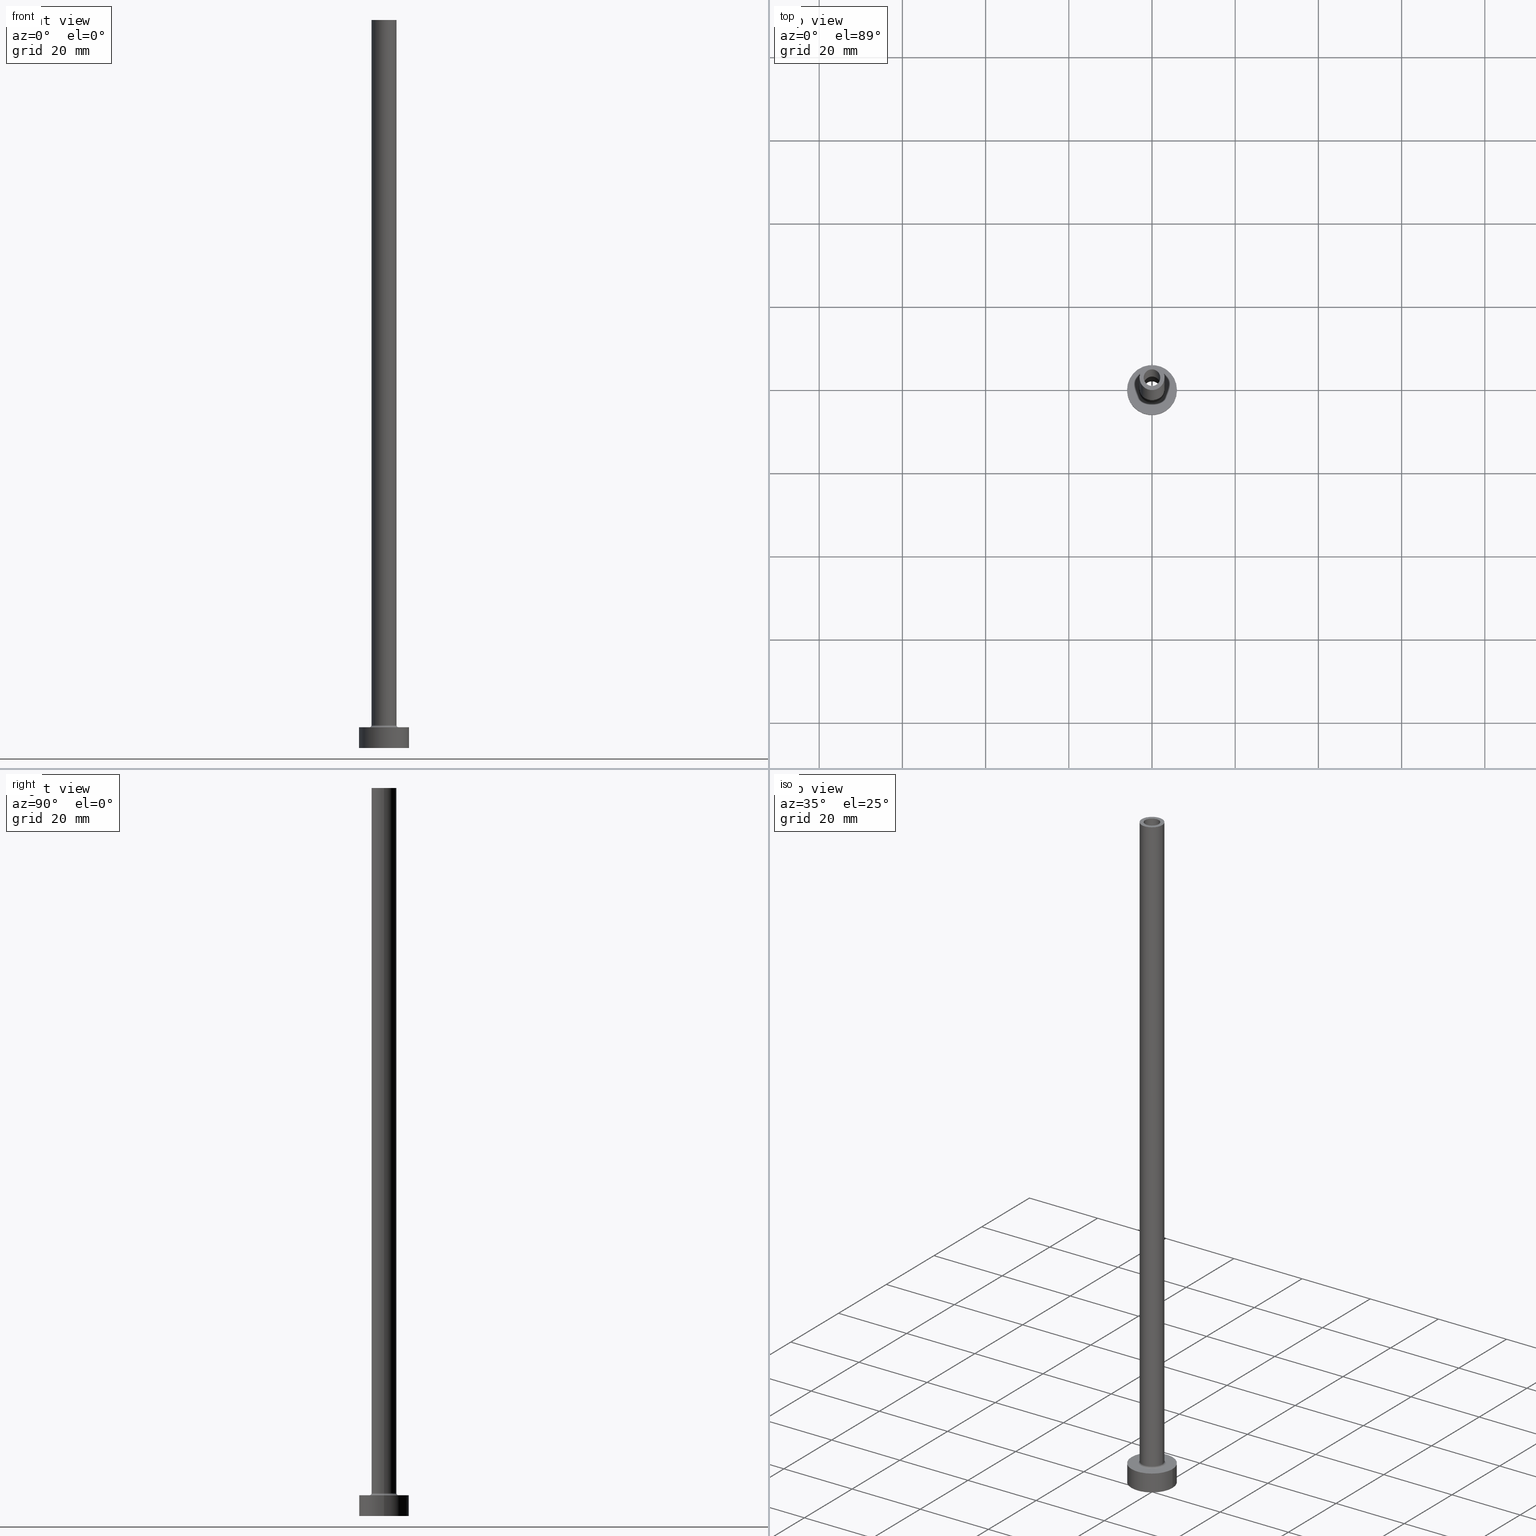
[diagram: canonical four-view strip — front | top / right | iso, engineering-drawing reading convention]
A machine part, canonical four-view strip (front | top / right | iso — engineering-drawing reading convention). The complete STEP part file that produces these views, byte-faithful:
ISO-10303-21;
HEADER;
FILE_DESCRIPTION (( 'STEP AP203' ),
    '1' );
FILE_NAME ('ddb3.STEP',
    '2023-02-13T17:45:48',
    ( '' ),
    ( '' ),
    'SwSTEP 2.0',
    'SolidWorks 2019',
    '' );
FILE_SCHEMA (( 'CONFIG_CONTROL_DESIGN' ));
ENDSEC;

DATA;
#1 = CARTESIAN_POINT ( 'NONE',  ( 6.000000000000000888, 7.347880794884120722E-16, 5.000000000000000000 ) ) ;
#2 = CARTESIAN_POINT ( 'NONE',  ( 0.000000000000000000, 0.000000000000000000, 0.000000000000000000 ) ) ;
#3 = PERSON_AND_ORGANIZATION_ROLE ( 'design_supplier' ) ;
#4 = ADVANCED_FACE ( 'NONE', ( #415 ), #43, .T. ) ;
#5 = PERSON_AND_ORGANIZATION ( #138, #287 ) ;
#6 = DIRECTION ( 'NONE',  ( 1.000000000000000000, 0.000000000000000000, 0.000000000000000000 ) ) ;
#7 = AXIS2_PLACEMENT_3D ( 'NONE', #293, #117, #431 ) ;
#8 = CIRCLE ( 'NONE', #316, 2.000000000000000000 ) ;
#9 = FACE_BOUND ( 'NONE', #270, .T. ) ;
#10 = FACE_OUTER_BOUND ( 'NONE', #244, .T. ) ;
#11 = ADVANCED_BREP_SHAPE_REPRESENTATION ( 'ddb3', ( #381, #333 ), #356 ) ;
#12 = ORIENTED_EDGE ( 'NONE', *, *, #237, .T. ) ;
#13 = AXIS2_PLACEMENT_3D ( 'NONE', #2, #75, #429 ) ;
#14 = EDGE_CURVE ( 'NONE', #413, #174, #24, .T. ) ;
#15 = FACE_OUTER_BOUND ( 'NONE', #280, .T. ) ;
#16 = CYLINDRICAL_SURFACE ( 'NONE', #257, 2.000000000000000000 ) ;
#17 = AXIS2_PLACEMENT_3D ( 'NONE', #446, #378, #372 ) ;
#18 = CIRCLE ( 'NONE', #192, 6.000000000000000888 ) ;
#19 = ORIENTED_EDGE ( 'NONE', *, *, #237, .F. ) ;
#20 = CARTESIAN_POINT ( 'NONE',  ( 0.000000000000000000, 0.000000000000000000, 5.000000000000000000 ) ) ;
#21 = CC_DESIGN_DATE_AND_TIME_ASSIGNMENT ( #250, #83, ( #76 ) ) ;
#22 = ORIENTED_EDGE ( 'NONE', *, *, #289, .T. ) ;
#23 = DIRECTION ( 'NONE',  ( -0.000000000000000000, -0.000000000000000000, -1.000000000000000000 ) ) ;
#24 = CIRCLE ( 'NONE', #13, 2.149999999999999911 ) ;
#25 = ORIENTED_EDGE ( 'NONE', *, *, #433, .F. ) ;
#26 = CARTESIAN_POINT ( 'NONE',  ( 0.000000000000000000, 0.000000000000000000, 175.0000000000000284 ) ) ;
#27 = CIRCLE ( 'NONE', #425, 3.000000000000000444 ) ;
#28 = LOCAL_TIME ( 18, 45, 48.00000000000000000, #318 ) ;
#29 = ORIENTED_EDGE ( 'NONE', *, *, #131, .T. ) ;
#30 = CYLINDRICAL_SURFACE ( 'NONE', #158, 6.000000000000000888 ) ;
#31 = EDGE_CURVE ( 'NONE', #397, #413, #102, .T. ) ;
#32 = DIRECTION ( 'NONE',  ( 1.000000000000000000, 0.000000000000000000, 0.000000000000000000 ) ) ;
#33 = CYLINDRICAL_SURFACE ( 'NONE', #453, 2.149999999999999911 ) ;
#34 = AXIS2_PLACEMENT_3D ( 'NONE', #444, #125, #271 ) ;
#35 = CARTESIAN_POINT ( 'NONE',  ( 2.000000000000000000, 2.449293598294706414E-16, 130.0000000000000000 ) ) ;
#36 = EDGE_CURVE ( 'NONE', #231, #403, #382, .T. ) ;
#37 = CARTESIAN_POINT ( 'NONE',  ( -3.500000000000000444, 4.286263797015737088E-16, 5.000000000000002665 ) ) ;
#38 = DIRECTION ( 'NONE',  ( 1.000000000000000000, 0.000000000000000000, 0.000000000000000000 ) ) ;
#39 = AXIS2_PLACEMENT_3D ( 'NONE', #253, #114, #6 ) ;
#40 = DIRECTION ( 'NONE',  ( 0.000000000000000000, 0.000000000000000000, 1.000000000000000000 ) ) ;
#41 = ORIENTED_EDGE ( 'NONE', *, *, #388, .F. ) ;
#42 = EDGE_CURVE ( 'NONE', #282, #357, #45, .T. ) ;
#43 = CYLINDRICAL_SURFACE ( 'NONE', #216, 3.000000000000000444 ) ;
#44 = DIRECTION ( 'NONE',  ( -0.000000000000000000, -0.000000000000000000, -1.000000000000000000 ) ) ;
#45 = CIRCLE ( 'NONE', #82, 3.000000000000000444 ) ;
#46 = PERSON_AND_ORGANIZATION ( #138, #287 ) ;
#47 = CARTESIAN_POINT ( 'NONE',  ( 0.000000000000000000, 0.000000000000000000, 175.0000000000000284 ) ) ;
#48 = PLANE ( 'NONE',  #7 ) ;
#49 = ORIENTED_EDGE ( 'NONE', *, *, #432, .T. ) ;
#50 = CC_DESIGN_PERSON_AND_ORGANIZATION_ASSIGNMENT ( #86, #149, ( #58 ) ) ;
#51 = APPROVAL_STATUS ( 'not_yet_approved' ) ;
#52 = DIRECTION ( 'NONE',  ( 1.000000000000000000, 0.000000000000000000, 0.000000000000000000 ) ) ;
#53 = AXIS2_PLACEMENT_3D ( 'NONE', #190, #439, #436 ) ;
#54 = CARTESIAN_POINT ( 'NONE',  ( 0.000000000000000000, 0.000000000000000000, 130.0000000000000000 ) ) ;
#55 = EDGE_CURVE ( 'NONE', #260, #389, #337, .T. ) ;
#56 = DIRECTION ( 'NONE',  ( 1.000000000000000000, 0.000000000000000000, 0.000000000000000000 ) ) ;
#57 = EDGE_CURVE ( 'NONE', #224, #389, #313, .T. ) ;
#58 = SECURITY_CLASSIFICATION ( '', '', #321 ) ;
#59 = LINE ( 'NONE', #194, #461 ) ;
#60 = ORIENTED_EDGE ( 'NONE', *, *, #324, .F. ) ;
#61 = DIRECTION ( 'NONE',  ( 0.000000000000000000, 0.000000000000000000, -1.000000000000000000 ) ) ;
#62 = VECTOR ( 'NONE', #396, 1000.000000000000000 ) ;
#63 = EDGE_LOOP ( 'NONE', ( #210, #451 ) ) ;
#64 = FACE_OUTER_BOUND ( 'NONE', #134, .T. ) ;
#65 = LOCAL_TIME ( 18, 45, 48.00000000000000000, #113 ) ;
#66 = EDGE_LOOP ( 'NONE', ( #300, #12, #291, #168 ) ) ;
#67 = LINE ( 'NONE', #232, #78 ) ;
#68 = DIRECTION ( 'NONE',  ( 1.000000000000000000, 0.000000000000000000, 0.000000000000000000 ) ) ;
#69 = CARTESIAN_POINT ( 'NONE',  ( 0.000000000000000000, 0.000000000000000000, 0.000000000000000000 ) ) ;
#70 = EDGE_CURVE ( 'NONE', #403, #231, #234, .T. ) ;
#71 = CIRCLE ( 'NONE', #323, 2.000000000000000000 ) ;
#72 = CC_DESIGN_APPROVAL ( #123, ( #58 ) ) ;
#73 = CARTESIAN_POINT ( 'NONE',  ( 6.000000000000000888, 7.347880794884120722E-16, 5.000000000000000000 ) ) ;
#74 = EDGE_LOOP ( 'NONE', ( #124, #298 ) ) ;
#75 = DIRECTION ( 'NONE',  ( -0.000000000000000000, -0.000000000000000000, -1.000000000000000000 ) ) ;
#76 = PRODUCT_DEFINITION ( 'NEZN�M�', '', #350, #455 ) ;
#77 = ORIENTED_EDGE ( 'NONE', *, *, #31, .T. ) ;
#78 = VECTOR ( 'NONE', #193, 1000.000000000000000 ) ;
#79 = PERSON_AND_ORGANIZATION_ROLE ( 'creator' ) ;
#80 = DATE_AND_TIME ( #184, #135 ) ;
#81 = CARTESIAN_POINT ( 'NONE',  ( 0.000000000000000000, 0.000000000000000000, 5.500000000000005329 ) ) ;
#82 = AXIS2_PLACEMENT_3D ( 'NONE', #274, #423, #107 ) ;
#83 = DATE_TIME_ROLE ( 'creation_date' ) ;
#84 = DIRECTION ( 'NONE',  ( 0.000000000000000000, 0.000000000000000000, 1.000000000000000000 ) ) ;
#85 = VERTEX_POINT ( 'NONE', #218 ) ;
#86 = PERSON_AND_ORGANIZATION ( #138, #287 ) ;
#87 = AXIS2_PLACEMENT_3D ( 'NONE', #296, #226, #200 ) ;
#88 = CARTESIAN_POINT ( 'NONE',  ( -6.000000000000000888, 0.000000000000000000, 5.000000000000000000 ) ) ;
#89 = ORIENTED_EDGE ( 'NONE', *, *, #402, .T. ) ;
#90 = CARTESIAN_POINT ( 'NONE',  ( -3.500000000000000444, 4.286263797015737088E-16, 5.500000000000005329 ) ) ;
#91 = PRODUCT_DEFINITION_SHAPE ( 'NONE', 'NONE',  #76 ) ;
#92 = EDGE_LOOP ( 'NONE', ( #447, #246, #369, #22 ) ) ;
#93 = FACE_BOUND ( 'NONE', #440, .T. ) ;
#94 = ORIENTED_EDGE ( 'NONE', *, *, #412, .F. ) ;
#95 = DIRECTION ( 'NONE',  ( -1.000000000000000000, 0.000000000000000000, 0.000000000000000000 ) ) ;
#96 = AXIS2_PLACEMENT_3D ( 'NONE', #329, #414, #261 ) ;
#97 = ORIENTED_EDGE ( 'NONE', *, *, #348, .T. ) ;
#98 = CARTESIAN_POINT ( 'NONE',  ( 3.500000000000000444, 0.000000000000000000, 5.000000000000002665 ) ) ;
#99 = EDGE_LOOP ( 'NONE', ( #335, #302 ) ) ;
#100 = CARTESIAN_POINT ( 'NONE',  ( 0.000000000000000000, 0.000000000000000000, 0.000000000000000000 ) ) ;
#101 = EDGE_CURVE ( 'NONE', #199, #282, #144, .T. ) ;
#102 = LINE ( 'NONE', #178, #352 ) ;
#103 = CYLINDRICAL_SURFACE ( 'NONE', #303, 3.000000000000000444 ) ;
#104 = AXIS2_PLACEMENT_3D ( 'NONE', #308, #353, #202 ) ;
#105 = DATE_AND_TIME ( #422, #370 ) ;
#106 = ADVANCED_FACE ( 'NONE', ( #179 ), #285, .T. ) ;
#107 = DIRECTION ( 'NONE',  ( 1.000000000000000000, 0.000000000000000000, 0.000000000000000000 ) ) ;
#108 =( NAMED_UNIT ( * ) PLANE_ANGLE_UNIT ( ) SI_UNIT ( $, .RADIAN. ) );
#109 = CARTESIAN_POINT ( 'NONE',  ( 0.000000000000000000, 0.000000000000000000, 175.0000000000000284 ) ) ;
#110 = EDGE_CURVE ( 'NONE', #272, #442, #189, .T. ) ;
#111 = DIRECTION ( 'NONE',  ( -0.000000000000000000, -0.000000000000000000, -1.000000000000000000 ) ) ;
#112 = ORIENTED_EDGE ( 'NONE', *, *, #42, .F. ) ;
#113 = COORDINATED_UNIVERSAL_TIME_OFFSET ( 1, 0, .AHEAD. ) ;
#114 = DIRECTION ( 'NONE',  ( 0.000000000000000000, 0.000000000000000000, 1.000000000000000000 ) ) ;
#115 = CIRCLE ( 'NONE', #34, 3.000000000000000444 ) ;
#116 = APPROVAL_ROLE ( '' ) ;
#117 = DIRECTION ( 'NONE',  ( 0.000000000000000000, 0.000000000000000000, 1.000000000000000000 ) ) ;
#118 = ADVANCED_FACE ( 'NONE', ( #15 ), #119, .F. ) ;
#119 = CYLINDRICAL_SURFACE ( 'NONE', #314, 2.000000000000000000 ) ;
#120 = CARTESIAN_POINT ( 'NONE',  ( 3.000000000000000444, 3.673940397442060361E-16, 175.0000000000000284 ) ) ;
#121 = EDGE_LOOP ( 'NONE', ( #367, #405 ) ) ;
#122 = CIRCLE ( 'NONE', #286, 0.4999999999999995559 ) ;
#123 = APPROVAL ( #51, 'NEUR�EN�' ) ;
#124 = ORIENTED_EDGE ( 'NONE', *, *, #432, .F. ) ;
#125 = DIRECTION ( 'NONE',  ( 0.000000000000000000, 0.000000000000000000, 1.000000000000000000 ) ) ;
#126 = ORIENTED_EDGE ( 'NONE', *, *, #330, .F. ) ;
#127 = DIRECTION ( 'NONE',  ( 0.000000000000000000, 0.000000000000000000, -1.000000000000000000 ) ) ;
#128 = PLANE ( 'NONE',  #87 ) ;
#129 = ORIENTED_EDGE ( 'NONE', *, *, #70, .F. ) ;
#130 = CARTESIAN_POINT ( 'NONE',  ( -3.000000000000000444, 0.000000000000000000, 5.500000000000005329 ) ) ;
#131 = EDGE_CURVE ( 'NONE', #357, #442, #122, .T. ) ;
#132 = ORIENTED_EDGE ( 'NONE', *, *, #348, .F. ) ;
#133 = LINE ( 'NONE', #448, #355 ) ;
#134 = EDGE_LOOP ( 'NONE', ( #160, #376 ) ) ;
#135 = LOCAL_TIME ( 18, 45, 48.00000000000000000, #252 ) ;
#136 = DIRECTION ( 'NONE',  ( 0.000000000000000000, -1.000000000000000000, 0.000000000000000000 ) ) ;
#137 = CARTESIAN_POINT ( 'NONE',  ( -2.149999999999999911, 0.000000000000000000, 130.0000000000000000 ) ) ;
#138 = PERSON ( 'NEUR�EN�', 'NEUR�EN�', 'NEUR�EN�', ('NEUR�EN�'), ('NEUR�EN�'), ('NEUR�EN�') ) ;
#139 = PERSON_AND_ORGANIZATION_ROLE ( 'design_owner' ) ;
#140 = EDGE_LOOP ( 'NONE', ( #438, #332, #142, #126 ) ) ;
#141 = CC_DESIGN_APPROVAL ( #169, ( #76 ) ) ;
#142 = ORIENTED_EDGE ( 'NONE', *, *, #42, .T. ) ;
#143 = COORDINATED_UNIVERSAL_TIME_OFFSET ( 1, 0, .AHEAD. ) ;
#144 = LINE ( 'NONE', #214, #153 ) ;
#145 = FACE_BOUND ( 'NONE', #63, .T. ) ;
#146 = AXIS2_PLACEMENT_3D ( 'NONE', #81, #84, #251 ) ;
#147 = ADVANCED_FACE ( 'NONE', ( #145, #437 ), #183, .F. ) ;
#148 = CC_DESIGN_APPROVAL ( #449, ( #350 ) ) ;
#149 = PERSON_AND_ORGANIZATION_ROLE ( 'classification_officer' ) ;
#150 = DIRECTION ( 'NONE',  ( 0.000000000000000000, 0.000000000000000000, 1.000000000000000000 ) ) ;
#151 = DIRECTION ( 'NONE',  ( 0.000000000000000000, 0.000000000000000000, 1.000000000000000000 ) ) ;
#152 = ORIENTED_EDGE ( 'NONE', *, *, #315, .T. ) ;
#153 = VECTOR ( 'NONE', #44, 1000.000000000000000 ) ;
#154 = CARTESIAN_POINT ( 'NONE',  ( 2.149999999999999911, 2.632990618166809235E-16, 0.000000000000000000 ) ) ;
#155 = ADVANCED_FACE ( 'NONE', ( #10 ), #400, .F. ) ;
#156 = ORIENTED_EDGE ( 'NONE', *, *, #31, .F. ) ;
#157 = VECTOR ( 'NONE', #23, 1000.000000000000000 ) ;
#158 = AXIS2_PLACEMENT_3D ( 'NONE', #20, #299, #95 ) ;
#159 = DIRECTION ( 'NONE',  ( 0.000000000000000000, 0.000000000000000000, 1.000000000000000000 ) ) ;
#160 = ORIENTED_EDGE ( 'NONE', *, *, #186, .T. ) ;
#161 = DIRECTION ( 'NONE',  ( 0.000000000000000000, 0.000000000000000000, -1.000000000000000000 ) ) ;
#162 = ORIENTED_EDGE ( 'NONE', *, *, #264, .T. ) ;
#163 = PRODUCT_RELATED_PRODUCT_CATEGORY ( 'detail', '', ( #195 ) ) ;
#164 = DIRECTION ( 'NONE',  ( -1.000000000000000000, 0.000000000000000000, 0.000000000000000000 ) ) ;
#165 = CIRCLE ( 'NONE', #424, 3.000000000000000444 ) ;
#166 = EDGE_LOOP ( 'NONE', ( #94, #220, #227, #258 ) ) ;
#167 = DIRECTION ( 'NONE',  ( 1.000000000000000000, 0.000000000000000000, 0.000000000000000000 ) ) ;
#168 = ORIENTED_EDGE ( 'NONE', *, *, #315, .F. ) ;
#169 = APPROVAL ( #277, 'NEUR�EN�' ) ;
#170 = CARTESIAN_POINT ( 'NONE',  ( 0.000000000000000000, 0.000000000000000000, 0.000000000000000000 ) ) ;
#171 = DIRECTION ( 'NONE',  ( 0.000000000000000000, 0.000000000000000000, -1.000000000000000000 ) ) ;
#172 = PERSON_AND_ORGANIZATION ( #138, #287 ) ;
#173 = UNCERTAINTY_MEASURE_WITH_UNIT (LENGTH_MEASURE( 1.000000000000000082E-05 ), #175, 'distance_accuracy_value', 'NONE');
#174 = VERTEX_POINT ( 'NONE', #154 ) ;
#175 =( LENGTH_UNIT ( ) NAMED_UNIT ( * ) SI_UNIT ( .MILLI., .METRE. ) );
#176 = ADVANCED_FACE ( 'NONE', ( #404, #361 ), #48, .T. ) ;
#177 = ORIENTED_EDGE ( 'NONE', *, *, #388, .T. ) ;
#178 = CARTESIAN_POINT ( 'NONE',  ( -2.149999999999999911, 0.000000000000000000, 136.0811183182042896 ) ) ;
#179 = FACE_OUTER_BOUND ( 'NONE', #166, .T. ) ;
#180 = AXIS2_PLACEMENT_3D ( 'NONE', #236, #201, #32 ) ;
#181 = EDGE_CURVE ( 'NONE', #254, #397, #267, .T. ) ;
#182 = PERSON_AND_ORGANIZATION_ROLE ( 'creator' ) ;
#183 = PLANE ( 'NONE',  #240 ) ;
#184 = CALENDAR_DATE ( 2023, 13, 2 ) ;
#185 = DIRECTION ( 'NONE',  ( 1.000000000000000000, 0.000000000000000000, 0.000000000000000000 ) ) ;
#186 = EDGE_CURVE ( 'NONE', #188, #199, #165, .T. ) ;
#187 = CARTESIAN_POINT ( 'NONE',  ( 0.000000000000000000, 0.000000000000000000, 175.0000000000000284 ) ) ;
#188 = VERTEX_POINT ( 'NONE', #322 ) ;
#189 = CIRCLE ( 'NONE', #53, 3.500000000000000444 ) ;
#190 = CARTESIAN_POINT ( 'NONE',  ( 0.000000000000000000, 0.000000000000000000, 5.000000000000000000 ) ) ;
#191 = ORIENTED_EDGE ( 'NONE', *, *, #433, .T. ) ;
#192 = AXIS2_PLACEMENT_3D ( 'NONE', #386, #40, #312 ) ;
#193 = DIRECTION ( 'NONE',  ( -0.000000000000000000, -0.000000000000000000, -1.000000000000000000 ) ) ;
#194 = CARTESIAN_POINT ( 'NONE',  ( 2.149999999999999911, 2.632990618166809235E-16, 136.0811183182042896 ) ) ;
#195 = PRODUCT ( 'ddb3', 'ddb3', '', ( #458 ) ) ;
#196 = ADVANCED_FACE ( 'NONE', ( #9, #399 ), #366, .F. ) ;
#197 = EDGE_LOOP ( 'NONE', ( #129, #262, #89, #233 ) ) ;
#198 = FACE_OUTER_BOUND ( 'NONE', #328, .T. ) ;
#199 = VERTEX_POINT ( 'NONE', #120 ) ;
#200 = DIRECTION ( 'NONE',  ( 1.000000000000000000, 0.000000000000000000, -0.000000000000000000 ) ) ;
#201 = DIRECTION ( 'NONE',  ( 0.000000000000000000, 0.000000000000000000, 1.000000000000000000 ) ) ;
#202 = DIRECTION ( 'NONE',  ( 1.000000000000000000, 0.000000000000000000, 0.000000000000000000 ) ) ;
#203 = CC_DESIGN_PERSON_AND_ORGANIZATION_ASSIGNMENT ( #398, #3, ( #350 ) ) ;
#204 = CIRCLE ( 'NONE', #341, 0.5000000000000004441 ) ;
#205 = CARTESIAN_POINT ( 'NONE',  ( 6.000000000000000888, 7.347880794884120722E-16, 0.000000000000000000 ) ) ;
#206 = DIRECTION ( 'NONE',  ( 0.000000000000000000, 0.000000000000000000, 1.000000000000000000 ) ) ;
#207 = CC_DESIGN_PERSON_AND_ORGANIZATION_ASSIGNMENT ( #172, #139, ( #195 ) ) ;
#208 = ORIENTED_EDGE ( 'NONE', *, *, #110, .F. ) ;
#209 = APPROVAL_STATUS ( 'not_yet_approved' ) ;
#210 = ORIENTED_EDGE ( 'NONE', *, *, #14, .F. ) ;
#211 = TOROIDAL_SURFACE ( 'NONE', #17, 3.500000000000000444, 0.5000000000000000000 ) ;
#212 = APPLICATION_CONTEXT ( 'configuration controlled 3d designs of mechanical parts and assemblies' ) ;
#213 = SHAPE_DEFINITION_REPRESENTATION ( #91, #11 ) ;
#214 = CARTESIAN_POINT ( 'NONE',  ( 3.000000000000000444, 3.673940397442060361E-16, 175.0000000000000284 ) ) ;
#215 = DIRECTION ( 'NONE',  ( 1.000000000000000000, 0.000000000000000000, -0.000000000000000000 ) ) ;
#216 = AXIS2_PLACEMENT_3D ( 'NONE', #109, #344, #387 ) ;
#217 = CALENDAR_DATE ( 2023, 13, 2 ) ;
#218 = CARTESIAN_POINT ( 'NONE',  ( -6.000000000000000888, 0.000000000000000000, 0.000000000000000000 ) ) ;
#219 = AXIS2_PLACEMENT_3D ( 'NONE', #229, #161, #443 ) ;
#220 = ORIENTED_EDGE ( 'NONE', *, *, #36, .F. ) ;
#221 = CIRCLE ( 'NONE', #295, 2.149999999999999911 ) ;
#222 = APPROVAL_DATE_TIME ( #80, #449 ) ;
#223 = CARTESIAN_POINT ( 'NONE',  ( 0.000000000000000000, 0.000000000000000000, 175.0000000000000284 ) ) ;
#224 = VERTEX_POINT ( 'NONE', #255 ) ;
#225 = DIRECTION ( 'NONE',  ( 1.000000000000000000, 0.000000000000000000, 0.000000000000000000 ) ) ;
#226 = DIRECTION ( 'NONE',  ( 0.000000000000000000, 0.000000000000000000, 1.000000000000000000 ) ) ;
#227 = ORIENTED_EDGE ( 'NONE', *, *, #347, .T. ) ;
#228 = LOCAL_TIME ( 18, 45, 48.00000000000000000, #143 ) ;
#229 = CARTESIAN_POINT ( 'NONE',  ( 0.000000000000000000, 0.000000000000000000, 136.0811183182042896 ) ) ;
#230 = CC_DESIGN_DATE_AND_TIME_ASSIGNMENT ( #393, #327, ( #58 ) ) ;
#231 = VERTEX_POINT ( 'NONE', #88 ) ;
#232 = CARTESIAN_POINT ( 'NONE',  ( -6.000000000000000888, 0.000000000000000000, 5.000000000000000000 ) ) ;
#233 = ORIENTED_EDGE ( 'NONE', *, *, #347, .F. ) ;
#234 = CIRCLE ( 'NONE', #39, 6.000000000000000888 ) ;
#235 = CARTESIAN_POINT ( 'NONE',  ( -3.000000000000000444, 0.000000000000000000, 175.0000000000000284 ) ) ;
#236 = CARTESIAN_POINT ( 'NONE',  ( 0.000000000000000000, 0.000000000000000000, 5.000000000000000000 ) ) ;
#237 = EDGE_CURVE ( 'NONE', #224, #266, #71, .T. ) ;
#238 = DIRECTION ( 'NONE',  ( -1.000000000000000000, 0.000000000000000000, 0.000000000000000000 ) ) ;
#239 = LINE ( 'NONE', #1, #276 ) ;
#240 = AXIS2_PLACEMENT_3D ( 'NONE', #435, #284, #215 ) ;
#241 = CARTESIAN_POINT ( 'NONE',  ( 0.000000000000000000, 0.000000000000000000, 130.0000000000000000 ) ) ;
#242 = ADVANCED_FACE ( 'NONE', ( #441 ), #16, .F. ) ;
#243 = COORDINATED_UNIVERSAL_TIME_OFFSET ( 1, 0, .AHEAD. ) ;
#244 = EDGE_LOOP ( 'NONE', ( #427, #29, #208, #41 ) ) ;
#245 = CARTESIAN_POINT ( 'NONE',  ( -2.149999999999999911, 0.000000000000000000, 0.000000000000000000 ) ) ;
#246 = ORIENTED_EDGE ( 'NONE', *, *, #186, .F. ) ;
#247 = ADVANCED_FACE ( 'NONE', ( #198 ), #406, .F. ) ;
#248 = CALENDAR_DATE ( 2023, 13, 2 ) ;
#249 = DIRECTION ( 'NONE',  ( -1.000000000000000000, 0.000000000000000000, 0.000000000000000000 ) ) ;
#250 = DATE_AND_TIME ( #395, #28 ) ;
#251 = DIRECTION ( 'NONE',  ( 1.000000000000000000, 0.000000000000000000, 0.000000000000000000 ) ) ;
#252 = COORDINATED_UNIVERSAL_TIME_OFFSET ( 1, 0, .AHEAD. ) ;
#253 = CARTESIAN_POINT ( 'NONE',  ( 0.000000000000000000, 0.000000000000000000, 5.000000000000000000 ) ) ;
#254 = VERTEX_POINT ( 'NONE', #409 ) ;
#255 = CARTESIAN_POINT ( 'NONE',  ( 2.000000000000000000, 2.449293598294706414E-16, 175.0000000000000284 ) ) ;
#256 = EDGE_CURVE ( 'NONE', #85, #408, #384, .T. ) ;
#257 = AXIS2_PLACEMENT_3D ( 'NONE', #371, #61, #238 ) ;
#258 = ORIENTED_EDGE ( 'NONE', *, *, #256, .T. ) ;
#259 = DIRECTION ( 'NONE',  ( 0.000000000000000000, 0.000000000000000000, -1.000000000000000000 ) ) ;
#260 = VERTEX_POINT ( 'NONE', #339 ) ;
#261 = DIRECTION ( 'NONE',  ( 1.000000000000000000, 0.000000000000000000, 0.000000000000000000 ) ) ;
#262 = ORIENTED_EDGE ( 'NONE', *, *, #412, .T. ) ;
#263 = ADVANCED_FACE ( 'NONE', ( #411 ), #103, .T. ) ;
#264 = EDGE_CURVE ( 'NONE', #254, #174, #59, .T. ) ;
#265 = CARTESIAN_POINT ( 'NONE',  ( 0.000000000000000000, 0.000000000000000000, 130.0000000000000000 ) ) ;
#266 = VERTEX_POINT ( 'NONE', #375 ) ;
#267 = CIRCLE ( 'NONE', #418, 2.149999999999999911 ) ;
#268 = APPROVAL_PERSON_ORGANIZATION ( #430, #449, #116 ) ;
#269 = DIRECTION ( 'NONE',  ( 1.000000000000000000, 0.000000000000000000, 0.000000000000000000 ) ) ;
#270 = EDGE_LOOP ( 'NONE', ( #354, #152 ) ) ;
#271 = DIRECTION ( 'NONE',  ( 1.000000000000000000, 0.000000000000000000, 0.000000000000000000 ) ) ;
#272 = VERTEX_POINT ( 'NONE', #98 ) ;
#273 = DIRECTION ( 'NONE',  ( 0.000000000000000000, 0.000000000000000000, 1.000000000000000000 ) ) ;
#274 = CARTESIAN_POINT ( 'NONE',  ( 0.000000000000000000, 0.000000000000000000, 5.500000000000005329 ) ) ;
#275 = DIRECTION ( 'NONE',  ( -0.000000000000000000, -0.000000000000000000, -1.000000000000000000 ) ) ;
#276 = VECTOR ( 'NONE', #111, 1000.000000000000000 ) ;
#277 = APPROVAL_STATUS ( 'not_yet_approved' ) ;
#278 = CARTESIAN_POINT ( 'NONE',  ( 0.000000000000000000, 0.000000000000000000, 175.0000000000000284 ) ) ;
#279 = PERSON_AND_ORGANIZATION ( #138, #287 ) ;
#280 = EDGE_LOOP ( 'NONE', ( #191, #385, #351, #60 ) ) ;
#281 = FACE_OUTER_BOUND ( 'NONE', #307, .T. ) ;
#282 = VERTEX_POINT ( 'NONE', #306 ) ;
#283 = CC_DESIGN_PERSON_AND_ORGANIZATION_ASSIGNMENT ( #5, #182, ( #350 ) ) ;
#284 = DIRECTION ( 'NONE',  ( 0.000000000000000000, 0.000000000000000000, 1.000000000000000000 ) ) ;
#285 = CYLINDRICAL_SURFACE ( 'NONE', #450, 6.000000000000000888 ) ;
#286 = AXIS2_PLACEMENT_3D ( 'NONE', #90, #392, #358 ) ;
#287 = ORGANIZATION ( 'NEUR�EN�', 'NEUR�EN�', '' ) ;
#288 = DIRECTION ( 'NONE',  ( -0.000000000000000000, -0.000000000000000000, -1.000000000000000000 ) ) ;
#289 = EDGE_CURVE ( 'NONE', #357, #282, #27, .T. ) ;
#290 = DIRECTION ( 'NONE',  ( 1.000000000000000000, 0.000000000000000000, -0.000000000000000000 ) ) ;
#291 = ORIENTED_EDGE ( 'NONE', *, *, #324, .T. ) ;
#292 = APPROVAL_ROLE ( '' ) ;
#293 = CARTESIAN_POINT ( 'NONE',  ( 0.000000000000000000, 0.000000000000000000, 5.000000000000000000 ) ) ;
#294 = CIRCLE ( 'NONE', #362, 2.000000000000000000 ) ;
#295 = AXIS2_PLACEMENT_3D ( 'NONE', #69, #275, #456 ) ;
#296 = CARTESIAN_POINT ( 'NONE',  ( 0.000000000000000000, 0.000000000000000000, 175.0000000000000284 ) ) ;
#297 = CC_DESIGN_PERSON_AND_ORGANIZATION_ASSIGNMENT ( #46, #79, ( #76 ) ) ;
#298 = ORIENTED_EDGE ( 'NONE', *, *, #181, .F. ) ;
#299 = DIRECTION ( 'NONE',  ( -0.000000000000000000, -0.000000000000000000, -1.000000000000000000 ) ) ;
#300 = ORIENTED_EDGE ( 'NONE', *, *, #57, .F. ) ;
#301 = DIRECTION ( 'NONE',  ( 0.000000000000000000, 0.000000000000000000, 1.000000000000000000 ) ) ;
#302 = ORIENTED_EDGE ( 'NONE', *, *, #402, .F. ) ;
#303 = AXIS2_PLACEMENT_3D ( 'NONE', #26, #336, #164 ) ;
#304 = LINE ( 'NONE', #235, #157 ) ;
#305 = ORIENTED_EDGE ( 'NONE', *, *, #264, .F. ) ;
#306 = CARTESIAN_POINT ( 'NONE',  ( 3.000000000000000444, 3.673940397442060361E-16, 5.500000000000005329 ) ) ;
#307 = EDGE_LOOP ( 'NONE', ( #49, #162, #374, #156 ) ) ;
#308 = CARTESIAN_POINT ( 'NONE',  ( 0.000000000000000000, 0.000000000000000000, 130.0000000000000000 ) ) ;
#309 = AXIS2_PLACEMENT_3D ( 'NONE', #100, #159, #167 ) ;
#310 = APPLICATION_PROTOCOL_DEFINITION ( 'international standard', 'config_control_design', 1994, #417 ) ;
#311 = DIRECTION ( 'NONE',  ( -1.000000000000000000, 0.000000000000000000, 0.000000000000000000 ) ) ;
#312 = DIRECTION ( 'NONE',  ( 1.000000000000000000, 0.000000000000000000, 0.000000000000000000 ) ) ;
#313 = LINE ( 'NONE', #460, #62 ) ;
#314 = AXIS2_PLACEMENT_3D ( 'NONE', #47, #259, #249 ) ;
#315 = EDGE_CURVE ( 'NONE', #389, #260, #294, .T. ) ;
#316 = AXIS2_PLACEMENT_3D ( 'NONE', #278, #345, #452 ) ;
#317 = EDGE_LOOP ( 'NONE', ( #445, #112, #177, #132 ) ) ;
#318 = COORDINATED_UNIVERSAL_TIME_OFFSET ( 1, 0, .AHEAD. ) ;
#319 = DIRECTION ( 'NONE',  ( 0.000000000000000000, 0.000000000000000000, -1.000000000000000000 ) ) ;
#320 = DIRECTION ( 'NONE',  ( -1.000000000000000000, 0.000000000000000000, 0.000000000000000000 ) ) ;
#321 = SECURITY_CLASSIFICATION_LEVEL ( 'unclassified' ) ;
#322 = CARTESIAN_POINT ( 'NONE',  ( -3.000000000000000444, 0.000000000000000000, 175.0000000000000284 ) ) ;
#323 = AXIS2_PLACEMENT_3D ( 'NONE', #223, #364, #52 ) ;
#324 = EDGE_CURVE ( 'NONE', #266, #260, #133, .T. ) ;
#325 = PERSON_AND_ORGANIZATION ( #138, #287 ) ;
#326 = CARTESIAN_POINT ( 'NONE',  ( 0.000000000000000000, 0.000000000000000000, 130.0000000000000000 ) ) ;
#327 = DATE_TIME_ROLE ( 'classification_date' ) ;
#328 = EDGE_LOOP ( 'NONE', ( #305, #363, #77, #340 ) ) ;
#329 = CARTESIAN_POINT ( 'NONE',  ( 0.000000000000000000, 0.000000000000000000, 5.000000000000000000 ) ) ;
#330 = EDGE_CURVE ( 'NONE', #188, #357, #304, .T. ) ;
#331 = CIRCLE ( 'NONE', #96, 3.500000000000000444 ) ;
#332 = ORIENTED_EDGE ( 'NONE', *, *, #101, .T. ) ;
#333 = AXIS2_PLACEMENT_3D ( 'NONE', #170, #379, #68 ) ;
#334 = DIRECTION ( 'NONE',  ( 0.000000000000000000, 0.000000000000000000, -1.000000000000000000 ) ) ;
#335 = ORIENTED_EDGE ( 'NONE', *, *, #256, .F. ) ;
#336 = DIRECTION ( 'NONE',  ( -0.000000000000000000, -0.000000000000000000, -1.000000000000000000 ) ) ;
#337 = CIRCLE ( 'NONE', #457, 2.000000000000000000 ) ;
#338 = ORIENTED_EDGE ( 'NONE', *, *, #110, .T. ) ;
#339 = CARTESIAN_POINT ( 'NONE',  ( -2.000000000000000000, 0.000000000000000000, 130.0000000000000000 ) ) ;
#340 = ORIENTED_EDGE ( 'NONE', *, *, #14, .T. ) ;
#341 = AXIS2_PLACEMENT_3D ( 'NONE', #421, #136, #171 ) ;
#342 = ADVANCED_FACE ( 'NONE', ( #416 ), #211, .F. ) ;
#343 = FACE_OUTER_BOUND ( 'NONE', #197, .T. ) ;
#344 = DIRECTION ( 'NONE',  ( -0.000000000000000000, -0.000000000000000000, -1.000000000000000000 ) ) ;
#345 = DIRECTION ( 'NONE',  ( 0.000000000000000000, 0.000000000000000000, 1.000000000000000000 ) ) ;
#346 = APPLICATION_PROTOCOL_DEFINITION ( 'international standard', 'config_control_design', 1994, #212 ) ;
#347 = EDGE_CURVE ( 'NONE', #231, #85, #67, .T. ) ;
#348 = EDGE_CURVE ( 'NONE', #442, #272, #331, .T. ) ;
#349 = CARTESIAN_POINT ( 'NONE',  ( 0.000000000000000000, 0.000000000000000000, 136.0811183182042896 ) ) ;
#350 = PRODUCT_DEFINITION_FORMATION_WITH_SPECIFIED_SOURCE ( 'LIBOVOLN�', '', #195, .NOT_KNOWN. ) ;
#351 = ORIENTED_EDGE ( 'NONE', *, *, #55, .F. ) ;
#352 = VECTOR ( 'NONE', #319, 1000.000000000000000 ) ;
#353 = DIRECTION ( 'NONE',  ( 0.000000000000000000, 0.000000000000000000, 1.000000000000000000 ) ) ;
#354 = ORIENTED_EDGE ( 'NONE', *, *, #55, .T. ) ;
#355 = VECTOR ( 'NONE', #334, 1000.000000000000000 ) ;
#356 =( GEOMETRIC_REPRESENTATION_CONTEXT ( 3 ) GLOBAL_UNCERTAINTY_ASSIGNED_CONTEXT ( ( #173 ) ) GLOBAL_UNIT_ASSIGNED_CONTEXT ( ( #175, #108, #454 ) ) REPRESENTATION_CONTEXT ( 'NONE', 'WORKASPACE' ) );
#357 = VERTEX_POINT ( 'NONE', #130 ) ;
#358 = DIRECTION ( 'NONE',  ( -1.000000000000000000, 1.224646799147354440E-16, 0.000000000000000000 ) ) ;
#359 = DIRECTION ( 'NONE',  ( 0.000000000000000000, 0.000000000000000000, 1.000000000000000000 ) ) ;
#360 = DATE_AND_TIME ( #217, #228 ) ;
#361 = FACE_OUTER_BOUND ( 'NONE', #121, .T. ) ;
#362 = AXIS2_PLACEMENT_3D ( 'NONE', #265, #301, #56 ) ;
#363 = ORIENTED_EDGE ( 'NONE', *, *, #181, .T. ) ;
#364 = DIRECTION ( 'NONE',  ( 0.000000000000000000, 0.000000000000000000, 1.000000000000000000 ) ) ;
#365 = EDGE_CURVE ( 'NONE', #199, #188, #115, .T. ) ;
#366 = PLANE ( 'NONE',  #377 ) ;
#367 = ORIENTED_EDGE ( 'NONE', *, *, #36, .T. ) ;
#368 = CARTESIAN_POINT ( 'NONE',  ( 0.000000000000000000, 0.000000000000000000, 5.500000000000005329 ) ) ;
#369 = ORIENTED_EDGE ( 'NONE', *, *, #330, .T. ) ;
#370 = LOCAL_TIME ( 18, 45, 48.00000000000000000, #243 ) ;
#371 = CARTESIAN_POINT ( 'NONE',  ( 0.000000000000000000, 0.000000000000000000, 175.0000000000000284 ) ) ;
#372 = DIRECTION ( 'NONE',  ( 1.000000000000000000, 0.000000000000000000, 0.000000000000000000 ) ) ;
#373 = ADVANCED_FACE ( 'NONE', ( #93, #64 ), #128, .T. ) ;
#374 = ORIENTED_EDGE ( 'NONE', *, *, #419, .T. ) ;
#375 = CARTESIAN_POINT ( 'NONE',  ( -2.000000000000000000, 0.000000000000000000, 175.0000000000000284 ) ) ;
#376 = ORIENTED_EDGE ( 'NONE', *, *, #365, .T. ) ;
#377 = AXIS2_PLACEMENT_3D ( 'NONE', #54, #150, #290 ) ;
#378 = DIRECTION ( 'NONE',  ( 0.000000000000000000, 0.000000000000000000, 1.000000000000000000 ) ) ;
#379 = DIRECTION ( 'NONE',  ( 0.000000000000000000, 0.000000000000000000, 1.000000000000000000 ) ) ;
#380 = ADVANCED_FACE ( 'NONE', ( #343 ), #30, .T. ) ;
#381 = MANIFOLD_SOLID_BREP ( 'Odebrat vysunut�m4', #407 ) ;
#382 = CIRCLE ( 'NONE', #180, 6.000000000000000888 ) ;
#383 = APPROVAL_DATE_TIME ( #105, #169 ) ;
#384 = CIRCLE ( 'NONE', #309, 6.000000000000000888 ) ;
#385 = ORIENTED_EDGE ( 'NONE', *, *, #57, .T. ) ;
#386 = CARTESIAN_POINT ( 'NONE',  ( 0.000000000000000000, 0.000000000000000000, 0.000000000000000000 ) ) ;
#387 = DIRECTION ( 'NONE',  ( -1.000000000000000000, 0.000000000000000000, 0.000000000000000000 ) ) ;
#388 = EDGE_CURVE ( 'NONE', #282, #272, #204, .T. ) ;
#389 = VERTEX_POINT ( 'NONE', #35 ) ;
#390 = APPROVAL_DATE_TIME ( #360, #123 ) ;
#391 = APPROVAL_PERSON_ORGANIZATION ( #325, #123, #292 ) ;
#392 = DIRECTION ( 'NONE',  ( 1.224646799147353207E-16, 1.000000000000000000, -0.000000000000000000 ) ) ;
#393 = DATE_AND_TIME ( #248, #65 ) ;
#394 = CARTESIAN_POINT ( 'NONE',  ( 0.000000000000000000, 0.000000000000000000, 5.000000000000000000 ) ) ;
#395 = CALENDAR_DATE ( 2023, 13, 2 ) ;
#396 = DIRECTION ( 'NONE',  ( 0.000000000000000000, 0.000000000000000000, -1.000000000000000000 ) ) ;
#397 = VERTEX_POINT ( 'NONE', #137 ) ;
#398 = PERSON_AND_ORGANIZATION ( #138, #287 ) ;
#399 = FACE_OUTER_BOUND ( 'NONE', #74, .T. ) ;
#400 = TOROIDAL_SURFACE ( 'NONE', #146, 3.500000000000000444, 0.5000000000000000000 ) ;
#401 = CIRCLE ( 'NONE', #104, 2.149999999999999911 ) ;
#402 = EDGE_CURVE ( 'NONE', #408, #85, #18, .T. ) ;
#403 = VERTEX_POINT ( 'NONE', #73 ) ;
#404 = FACE_BOUND ( 'NONE', #410, .T. ) ;
#405 = ORIENTED_EDGE ( 'NONE', *, *, #70, .T. ) ;
#406 = CYLINDRICAL_SURFACE ( 'NONE', #219, 2.149999999999999911 ) ;
#407 = CLOSED_SHELL ( 'NONE', ( #118, #459, #155, #4, #380, #106, #176, #147, #263, #373, #342, #247, #196, #242 ) ) ;
#408 = VERTEX_POINT ( 'NONE', #205 ) ;
#409 = CARTESIAN_POINT ( 'NONE',  ( 2.149999999999999911, 2.632990618166809235E-16, 130.0000000000000000 ) ) ;
#410 = EDGE_LOOP ( 'NONE', ( #338, #97 ) ) ;
#411 = FACE_OUTER_BOUND ( 'NONE', #92, .T. ) ;
#412 = EDGE_CURVE ( 'NONE', #403, #408, #239, .T. ) ;
#413 = VERTEX_POINT ( 'NONE', #245 ) ;
#414 = DIRECTION ( 'NONE',  ( -0.000000000000000000, -0.000000000000000000, -1.000000000000000000 ) ) ;
#415 = FACE_OUTER_BOUND ( 'NONE', #140, .T. ) ;
#416 = FACE_OUTER_BOUND ( 'NONE', #317, .T. ) ;
#417 = APPLICATION_CONTEXT ( 'configuration controlled 3d designs of mechanical parts and assemblies' ) ;
#418 = AXIS2_PLACEMENT_3D ( 'NONE', #326, #151, #185 ) ;
#419 = EDGE_CURVE ( 'NONE', #174, #413, #221, .T. ) ;
#420 = CC_DESIGN_SECURITY_CLASSIFICATION ( #58, ( #350 ) ) ;
#421 = CARTESIAN_POINT ( 'NONE',  ( 3.500000000000000444, 0.000000000000000000, 5.500000000000005329 ) ) ;
#422 = CALENDAR_DATE ( 2023, 13, 2 ) ;
#423 = DIRECTION ( 'NONE',  ( 0.000000000000000000, 0.000000000000000000, 1.000000000000000000 ) ) ;
#424 = AXIS2_PLACEMENT_3D ( 'NONE', #187, #359, #225 ) ;
#425 = AXIS2_PLACEMENT_3D ( 'NONE', #368, #273, #269 ) ;
#426 = APPROVAL_ROLE ( '' ) ;
#427 = ORIENTED_EDGE ( 'NONE', *, *, #289, .F. ) ;
#428 = DIRECTION ( 'NONE',  ( 0.000000000000000000, 0.000000000000000000, -1.000000000000000000 ) ) ;
#429 = DIRECTION ( 'NONE',  ( 1.000000000000000000, 0.000000000000000000, 0.000000000000000000 ) ) ;
#430 = PERSON_AND_ORGANIZATION ( #138, #287 ) ;
#431 = DIRECTION ( 'NONE',  ( 1.000000000000000000, 0.000000000000000000, -0.000000000000000000 ) ) ;
#432 = EDGE_CURVE ( 'NONE', #397, #254, #401, .T. ) ;
#433 = EDGE_CURVE ( 'NONE', #266, #224, #8, .T. ) ;
#434 = APPROVAL_PERSON_ORGANIZATION ( #279, #169, #426 ) ;
#435 = CARTESIAN_POINT ( 'NONE',  ( 0.000000000000000000, 0.000000000000000000, 0.000000000000000000 ) ) ;
#436 = DIRECTION ( 'NONE',  ( 1.000000000000000000, 0.000000000000000000, 0.000000000000000000 ) ) ;
#437 = FACE_OUTER_BOUND ( 'NONE', #99, .T. ) ;
#438 = ORIENTED_EDGE ( 'NONE', *, *, #365, .F. ) ;
#439 = DIRECTION ( 'NONE',  ( -0.000000000000000000, -0.000000000000000000, -1.000000000000000000 ) ) ;
#440 = EDGE_LOOP ( 'NONE', ( #25, #19 ) ) ;
#441 = FACE_OUTER_BOUND ( 'NONE', #66, .T. ) ;
#442 = VERTEX_POINT ( 'NONE', #37 ) ;
#443 = DIRECTION ( 'NONE',  ( -1.000000000000000000, 0.000000000000000000, 0.000000000000000000 ) ) ;
#444 = CARTESIAN_POINT ( 'NONE',  ( 0.000000000000000000, 0.000000000000000000, 175.0000000000000284 ) ) ;
#445 = ORIENTED_EDGE ( 'NONE', *, *, #131, .F. ) ;
#446 = CARTESIAN_POINT ( 'NONE',  ( 0.000000000000000000, 0.000000000000000000, 5.500000000000005329 ) ) ;
#447 = ORIENTED_EDGE ( 'NONE', *, *, #101, .F. ) ;
#448 = CARTESIAN_POINT ( 'NONE',  ( -2.000000000000000000, 0.000000000000000000, 175.0000000000000284 ) ) ;
#449 = APPROVAL ( #209, 'NEUR�EN�' ) ;
#450 = AXIS2_PLACEMENT_3D ( 'NONE', #394, #288, #320 ) ;
#451 = ORIENTED_EDGE ( 'NONE', *, *, #419, .F. ) ;
#452 = DIRECTION ( 'NONE',  ( 1.000000000000000000, 0.000000000000000000, 0.000000000000000000 ) ) ;
#453 = AXIS2_PLACEMENT_3D ( 'NONE', #349, #428, #311 ) ;
#454 =( NAMED_UNIT ( * ) SI_UNIT ( $, .STERADIAN. ) SOLID_ANGLE_UNIT ( ) );
#455 = DESIGN_CONTEXT ( 'detailed design', #417, 'design' ) ;
#456 = DIRECTION ( 'NONE',  ( 1.000000000000000000, 0.000000000000000000, 0.000000000000000000 ) ) ;
#457 = AXIS2_PLACEMENT_3D ( 'NONE', #241, #206, #38 ) ;
#458 = MECHANICAL_CONTEXT ( 'NONE', #212, 'mechanical' ) ;
#459 = ADVANCED_FACE ( 'NONE', ( #281 ), #33, .F. ) ;
#460 = CARTESIAN_POINT ( 'NONE',  ( 2.000000000000000000, 2.449293598294706414E-16, 175.0000000000000284 ) ) ;
#461 = VECTOR ( 'NONE', #127, 1000.000000000000000 ) ;
ENDSEC;
END-ISO-10303-21;
